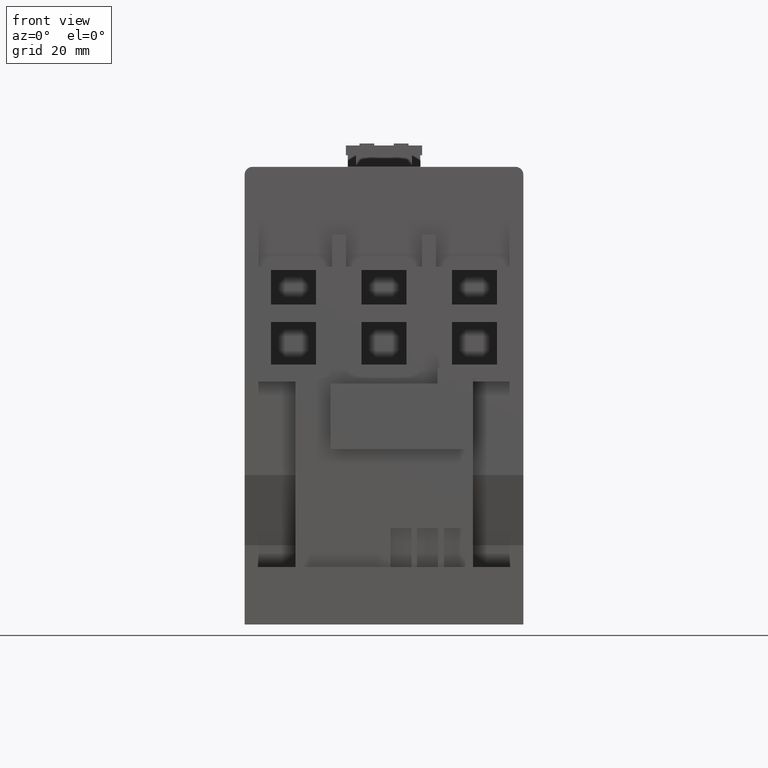
[diagram: clean part render]
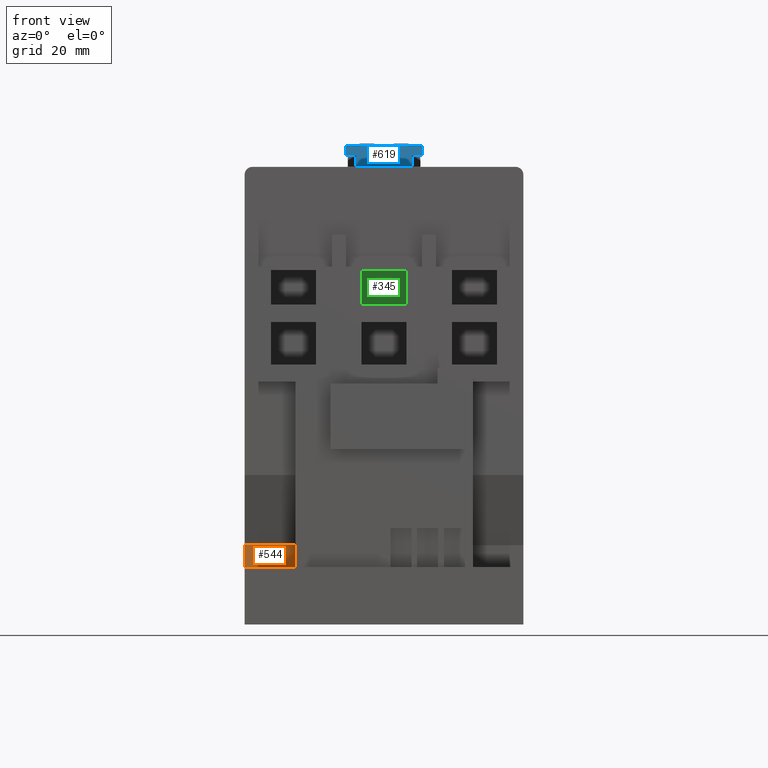
[diagram: same view with three faces highlighted in distinct colors, each labeled with its STEP entity id]
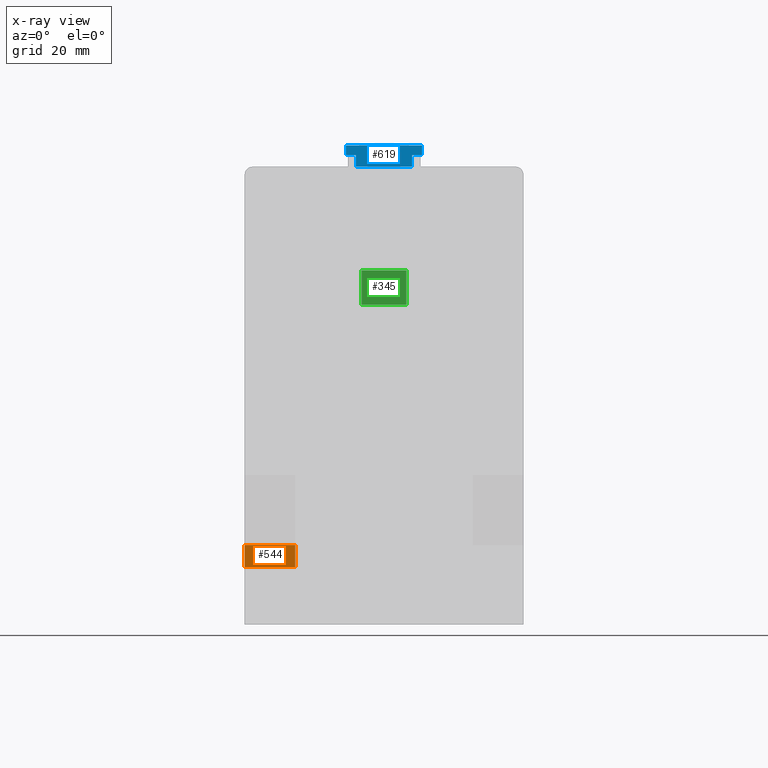
[diagram: x-ray of the same camera — body ghosted, the three highlighted faces saturated]
A machine part, front view with three faces highlighted in distinct colors.
The next image is the same camera in x-ray (body ghosted, the three faces saturated) — at least one of them is partly hidden behind the body in this view.
Their STEP definitions:

[orange] entity #544 — the highlighted planar face has unit normal (0, -1, 0).
#544=ADVANCED_FACE('',(#1221),#899,.T.);
#899=PLANE('',#7437);
#1221=FACE_OUTER_BOUND('',#1663,.T.);
#1663=EDGE_LOOP('',(#3248,#3249,#3250,#3251));
#3248=ORIENTED_EDGE('',*,*,#4455,.F.);
#3249=ORIENTED_EDGE('',*,*,#4574,.F.);
#3250=ORIENTED_EDGE('',*,*,#5165,.T.);
#3251=ORIENTED_EDGE('',*,*,#5166,.T.);
#3795=VERTEX_POINT('',#9519);
#3796=VERTEX_POINT('',#9521);
#3910=VERTEX_POINT('',#9757);
#4290=VERTEX_POINT('',#10971);
#4455=EDGE_CURVE('',#3795,#3796,#5412,.T.);
#4574=EDGE_CURVE('',#3910,#3795,#5521,.T.);
#5165=EDGE_CURVE('',#3910,#4290,#6070,.T.);
#5166=EDGE_CURVE('',#4290,#3796,#6071,.T.);
#5412=LINE('',#9520,#6317);
#5521=LINE('',#9758,#6426);
#6070=LINE('',#10970,#6975);
#6071=LINE('',#10972,#6976);
#6317=VECTOR('',#7684,1.);
#6426=VECTOR('',#7821,1.);
#6975=VECTOR('',#8938,1.);
#6976=VECTOR('',#8939,1.);
#7437=AXIS2_PLACEMENT_3D('',#10973,#8940,#8941);
#7684=DIRECTION('',(0.,0.,1.));
#7821=DIRECTION('',(-1.,0.,0.));
#8938=DIRECTION('',(0.,0.,1.));
#8939=DIRECTION('',(-1.,0.,0.));
#8940=DIRECTION('',(0.,-1.,0.));
#8941=DIRECTION('',(0.,0.,-1.));
#9519=CARTESIAN_POINT('',(-35.8,-42.1,9.70000000000936));
#9520=CARTESIAN_POINT('',(-35.8,-42.1,9.70000000000936));
#9521=CARTESIAN_POINT('',(-35.8,-42.1,15.4000000000094));
#9757=CARTESIAN_POINT('',(-22.8,-42.1,9.70000000000936));
#9758=CARTESIAN_POINT('',(-22.8,-42.1,9.70000000000936));
#10970=CARTESIAN_POINT('',(-22.8,-42.1,9.70000000000936));
#10971=CARTESIAN_POINT('',(-22.8,-42.1,15.4000000000094));
#10972=CARTESIAN_POINT('',(-22.8,-42.1,15.4000000000094));
#10973=CARTESIAN_POINT('',(-22.8,-42.1,9.70000000000936));

[blue] entity #619 — the highlighted planar face has unit normal (0, 1, 0).
#619=ADVANCED_FACE('',(#1296),#966,.F.);
#966=PLANE('',#7512);
#1296=FACE_OUTER_BOUND('',#1738,.T.);
#1738=EDGE_LOOP('',(#3550,#3551,#3552,#3553,#3554,#3555,#3556,#3557));
#3550=ORIENTED_EDGE('',*,*,#4387,.T.);
#3551=ORIENTED_EDGE('',*,*,#5271,.T.);
#3552=ORIENTED_EDGE('',*,*,#5272,.T.);
#3553=ORIENTED_EDGE('',*,*,#4402,.T.);
#3554=ORIENTED_EDGE('',*,*,#5273,.T.);
#3555=ORIENTED_EDGE('',*,*,#5274,.T.);
#3556=ORIENTED_EDGE('',*,*,#5275,.F.);
#3557=ORIENTED_EDGE('',*,*,#5276,.F.);
#3735=VERTEX_POINT('',#9387);
#3736=VERTEX_POINT('',#9389);
#3747=VERTEX_POINT('',#9418);
#3748=VERTEX_POINT('',#9419);
#4333=VERTEX_POINT('',#11195);
#4334=VERTEX_POINT('',#11198);
#4335=VERTEX_POINT('',#11200);
#4336=VERTEX_POINT('',#11202);
#4387=EDGE_CURVE('',#3736,#3735,#5350,.T.);
#4402=EDGE_CURVE('',#3747,#3748,#5365,.T.);
#5271=EDGE_CURVE('',#3735,#4333,#6176,.T.);
#5272=EDGE_CURVE('',#4333,#3747,#6177,.T.);
#5273=EDGE_CURVE('',#3748,#4334,#6178,.T.);
#5274=EDGE_CURVE('',#4334,#4335,#6179,.T.);
#5275=EDGE_CURVE('',#4336,#4335,#6180,.T.);
#5276=EDGE_CURVE('',#3736,#4336,#6181,.T.);
#5350=LINE('',#9388,#6255);
#5365=LINE('',#9417,#6270);
#6176=LINE('',#11194,#7081);
#6177=LINE('',#11196,#7082);
#6178=LINE('',#11197,#7083);
#6179=LINE('',#11199,#7084);
#6180=LINE('',#11201,#7085);
#6181=LINE('',#11203,#7086);
#6255=VECTOR('',#7602,1.);
#6270=VECTOR('',#7623,1.);
#7081=VECTOR('',#9194,1.);
#7082=VECTOR('',#9195,1.);
#7083=VECTOR('',#9196,1.);
#7084=VECTOR('',#9197,1.);
#7085=VECTOR('',#9198,1.);
#7086=VECTOR('',#9199,1.);
#7512=AXIS2_PLACEMENT_3D('',#11204,#9200,#9201);
#7602=DIRECTION('',(1.17145334231628E-015,0.,-1.));
#7623=DIRECTION('',(1.,0.,0.));
#9194=DIRECTION('',(1.,0.,0.));
#9195=DIRECTION('',(2.91550164029715E-016,0.,-1.));
#9196=DIRECTION('',(0.,0.,1.));
#9197=DIRECTION('',(1.,0.,0.));
#9198=DIRECTION('',(1.17145334231628E-015,0.,-1.));
#9199=DIRECTION('',(1.,0.,0.));
#9200=DIRECTION('',(0.,1.,0.));
#9201=DIRECTION('',(0.,0.,1.));
#9387=CARTESIAN_POINT('',(-9.8,-16.,115.525));
#9388=CARTESIAN_POINT('',(-9.8,-16.,118.05));
#9389=CARTESIAN_POINT('',(-9.8,-16.,118.05));
#9417=CARTESIAN_POINT('',(-9.8,-16.,112.55));
#9418=CARTESIAN_POINT('',(-7.2,-16.,112.55));
#9419=CARTESIAN_POINT('',(7.2,-16.,112.55));
#11194=CARTESIAN_POINT('',(-9.8,-16.,115.525));
#11195=CARTESIAN_POINT('',(-7.2,-16.,115.525));
#11196=CARTESIAN_POINT('',(-7.2,-16.,118.05));
#11197=CARTESIAN_POINT('',(7.2,-16.,118.05));
#11198=CARTESIAN_POINT('',(7.2,-16.,115.525));
#11199=CARTESIAN_POINT('',(-9.8,-16.,115.525));
#11200=CARTESIAN_POINT('',(9.8,-16.,115.525));
#11201=CARTESIAN_POINT('',(9.79999999999999,-16.,118.05));
#11202=CARTESIAN_POINT('',(9.79999999999999,-16.,118.05));
#11203=CARTESIAN_POINT('',(-9.8,-16.,118.05));
#11204=CARTESIAN_POINT('',(-9.8,-16.,118.05));

[green] entity #345 — the highlighted planar face has unit normal (0, 1, 0).
#345=ADVANCED_FACE('',(#1042),#712,.F.);
#712=PLANE('',#7220);
#1042=FACE_OUTER_BOUND('',#1444,.T.);
#1444=EDGE_LOOP('',(#2370,#2371,#2372,#2373));
#2370=ORIENTED_EDGE('',*,*,#4816,.F.);
#2371=ORIENTED_EDGE('',*,*,#4822,.F.);
#2372=ORIENTED_EDGE('',*,*,#4820,.F.);
#2373=ORIENTED_EDGE('',*,*,#4818,.F.);
#4105=VERTEX_POINT('',#10233);
#4106=VERTEX_POINT('',#10235);
#4107=VERTEX_POINT('',#10239);
#4108=VERTEX_POINT('',#10243);
#4816=EDGE_CURVE('',#4105,#4106,#5739,.T.);
#4818=EDGE_CURVE('',#4106,#4107,#5741,.T.);
#4820=EDGE_CURVE('',#4107,#4108,#5743,.T.);
#4822=EDGE_CURVE('',#4108,#4105,#5745,.T.);
#5739=LINE('',#10234,#6644);
#5741=LINE('',#10238,#6646);
#5743=LINE('',#10242,#6648);
#5745=LINE('',#10246,#6650);
#6644=VECTOR('',#8165,1.);
#6646=VECTOR('',#8169,1.);
#6648=VECTOR('',#8173,1.);
#6650=VECTOR('',#8177,1.);
#7220=AXIS2_PLACEMENT_3D('',#10248,#8180,#8181);
#8165=DIRECTION('',(-1.,0.,0.));
#8169=DIRECTION('',(3.94255335449274E-016,0.,1.));
#8173=DIRECTION('',(1.,0.,0.));
#8177=DIRECTION('',(0.,0.,-1.));
#8180=DIRECTION('',(0.,1.,0.));
#8181=DIRECTION('',(0.,0.,1.));
#10233=CARTESIAN_POINT('',(5.75,-30.7,77.15));
#10234=CARTESIAN_POINT('',(5.75,-30.7,77.15));
#10235=CARTESIAN_POINT('',(-5.75000000000001,-30.7,77.15));
#10238=CARTESIAN_POINT('',(-5.75000000000001,-30.7,77.15));
#10239=CARTESIAN_POINT('',(-5.75,-30.7,85.95));
#10242=CARTESIAN_POINT('',(-5.75,-30.7,85.95));
#10243=CARTESIAN_POINT('',(5.75,-30.7,85.95));
#10246=CARTESIAN_POINT('',(5.75,-30.7,85.95));
#10248=CARTESIAN_POINT('',(-5.75000000000001,-30.7,77.15));